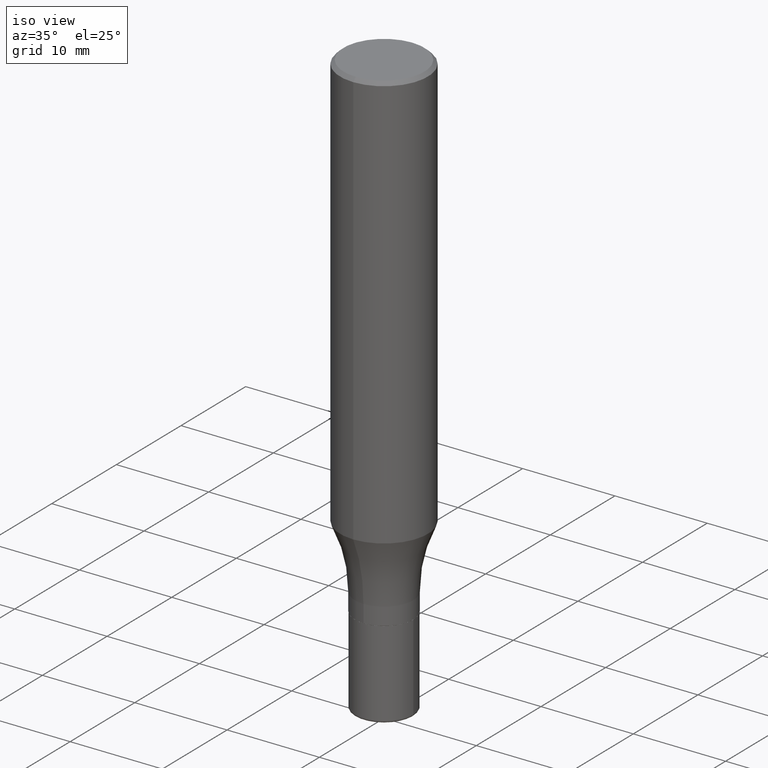
[diagram: clean part render]
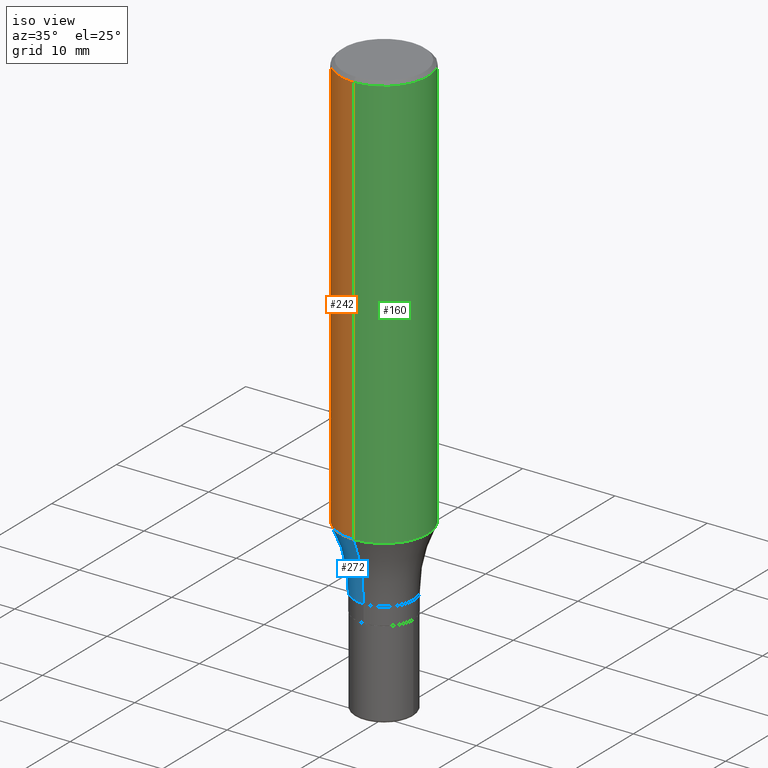
[diagram: same view with three faces highlighted in distinct colors, each labeled with its STEP entity id]
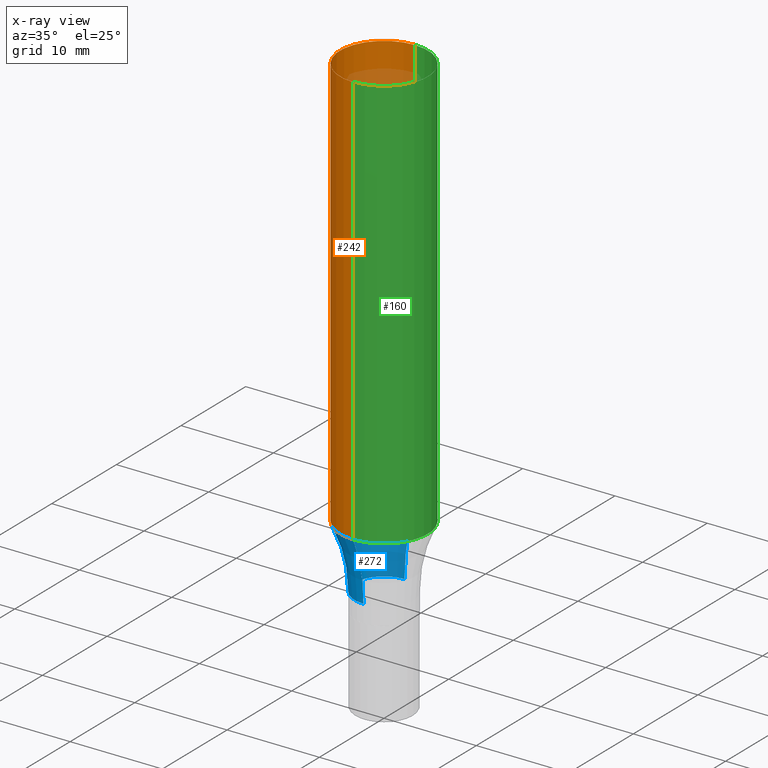
[diagram: x-ray of the same camera — body ghosted, the three highlighted faces saturated]
A machine part, iso view with three faces highlighted in distinct colors.
The next image is the same camera in x-ray (body ghosted, the three faces saturated) — at least one of them is partly hidden behind the body in this view.
Their STEP definitions:

[orange] entity #242 — the highlighted cylindrical surface (partial cylindrical patch) has radius 4.7625 mm, axis along (-0, 0, 1).
#5 = DIRECTION ( 'NONE',  ( -6.982962677686266711E-15, -1.000000000000000000, 3.490836523568371261E-15 ) ) ;
#21 = VERTEX_POINT ( 'NONE', #30 ) ;
#23 = VERTEX_POINT ( 'NONE', #432 ) ;
#28 = ORIENTED_EDGE ( 'NONE', *, *, #367, .F. ) ;
#30 = CARTESIAN_POINT ( 'NONE',  ( 1.332267629550230841E-15, 0.1874999999999937550, -1.777568816028709087 ) ) ;
#46 = DIRECTION ( 'NONE',  ( -2.445919078284912062E-29, 3.490836523568370866E-15, 1.000000000000000000 ) ) ;
#48 = VECTOR ( 'NONE', #201, 39.37007874015748143 ) ;
#81 = EDGE_CURVE ( 'NONE', #21, #102, #506, .T. ) ;
#102 = VERTEX_POINT ( 'NONE', #155 ) ;
#104 = LINE ( 'NONE', #132, #508 ) ;
#107 = AXIS2_PLACEMENT_3D ( 'NONE', #204, #46, #361 ) ;
#124 = CARTESIAN_POINT ( 'NONE',  ( 0.000000000000000000, 0.000000000000000000, 0.000000000000000000 ) ) ;
#132 = CARTESIAN_POINT ( 'NONE',  ( -1.309305502066174811E-15, -0.1874999999999999722, 6.545318481690694881E-16 ) ) ;
#155 = CARTESIAN_POINT ( 'NONE',  ( -1.309305502066131029E-15, -0.1875000000000061340, -1.777568816028707532 ) ) ;
#193 = DIRECTION ( 'NONE',  ( -2.445919078284912062E-29, 3.490836523568370866E-15, 1.000000000000000000 ) ) ;
#197 = FACE_OUTER_BOUND ( 'NONE', #208, .T. ) ;
#199 = CARTESIAN_POINT ( 'NONE',  ( 1.332267629550187454E-15, 0.1874999999999999722, -6.545318481690694881E-16 ) ) ;
#201 = DIRECTION ( 'NONE',  ( -2.445919078284912342E-29, 3.490836523568370866E-15, 1.000000000000000000 ) ) ;
#204 = CARTESIAN_POINT ( 'NONE',  ( 3.668878617427351400E-31, -5.236254785352532066E-17, -0.01499999999999993179 ) ) ;
#208 = EDGE_LOOP ( 'NONE', ( #217, #472, #306, #28 ) ) ;
#217 = ORIENTED_EDGE ( 'NONE', *, *, #313, .F. ) ;
#242 = ADVANCED_FACE ( 'NONE', ( #197 ), #357, .T. ) ;
#245 = LINE ( 'NONE', #199, #48 ) ;
#246 = DIRECTION ( 'NONE',  ( -2.445919078284912062E-29, 3.490836523568370866E-15, 1.000000000000000000 ) ) ;
#249 = CIRCLE ( 'NONE', #107, 0.1875000000000000278 ) ;
#282 = AXIS2_PLACEMENT_3D ( 'NONE', #392, #246, #480 ) ;
#306 = ORIENTED_EDGE ( 'NONE', *, *, #466, .T. ) ;
#313 = EDGE_CURVE ( 'NONE', #21, #507, #245, .T. ) ;
#357 = CYLINDRICAL_SURFACE ( 'NONE', #487, 0.1874999999999999722 ) ;
#361 = DIRECTION ( 'NONE',  ( -6.982962677686265922E-15, -1.000000000000000000, 3.494488891895536035E-15 ) ) ;
#367 = EDGE_CURVE ( 'NONE', #507, #23, #249, .T. ) ;
#392 = CARTESIAN_POINT ( 'NONE',  ( 4.347789480088940761E-29, -6.205202146149201072E-15, -1.777568816028708421 ) ) ;
#419 = CARTESIAN_POINT ( 'NONE',  ( 1.309305502066175600E-15, 0.1874999999999999445, -0.01500000000000058752 ) ) ;
#432 = CARTESIAN_POINT ( 'NONE',  ( -1.286343374582161576E-15, -0.1875000000000000833, -0.01499999999999927607 ) ) ;
#466 = EDGE_CURVE ( 'NONE', #102, #23, #104, .T. ) ;
#472 = ORIENTED_EDGE ( 'NONE', *, *, #81, .T. ) ;
#480 = DIRECTION ( 'NONE',  ( -6.982962677686266711E-15, -1.000000000000000000, 2.913971193241881161E-15 ) ) ;
#487 = AXIS2_PLACEMENT_3D ( 'NONE', #124, #193, #5 ) ;
#492 = DIRECTION ( 'NONE',  ( -2.445919078284912342E-29, 3.490836523568370866E-15, 1.000000000000000000 ) ) ;
#506 = CIRCLE ( 'NONE', #282, 0.1874999999999999722 ) ;
#507 = VERTEX_POINT ( 'NONE', #419 ) ;
#508 = VECTOR ( 'NONE', #492, 39.37007874015748143 ) ;

[blue] entity #272 — the highlighted toroidal blend (fillet) surface has major radius 19.05 mm and minor (blend) radius 15.875 mm.
#1 = EDGE_CURVE ( 'NONE', #334, #469, #314, .T. ) ;
#2 = CARTESIAN_POINT ( 'NONE',  ( 5.329070518200801092E-15, 0.7499999999999930056, -2.050000000000002931 ) ) ;
#21 = VERTEX_POINT ( 'NONE', #30 ) ;
#29 = AXIS2_PLACEMENT_3D ( 'NONE', #165, #248, #405 ) ;
#30 = CARTESIAN_POINT ( 'NONE',  ( 1.332267629550230841E-15, 0.1874999999999937550, -1.777568816028709087 ) ) ;
#64 = AXIS2_PLACEMENT_3D ( 'NONE', #467, #74, #183 ) ;
#74 = DIRECTION ( 'NONE',  ( -2.445919078284912062E-29, 3.490836523568370866E-15, 1.000000000000000000 ) ) ;
#75 = CARTESIAN_POINT ( 'NONE',  ( 1.110223024625203083E-15, 0.1249999999999928807, -2.050000000000000711 ) ) ;
#81 = EDGE_CURVE ( 'NONE', #21, #102, #506, .T. ) ;
#83 = CIRCLE ( 'NONE', #470, 0.6249999999999998890 ) ;
#102 = VERTEX_POINT ( 'NONE', #155 ) ;
#106 = ORIENTED_EDGE ( 'NONE', *, *, #175, .F. ) ;
#110 = ORIENTED_EDGE ( 'NONE', *, *, #1, .T. ) ;
#136 = CARTESIAN_POINT ( 'NONE',  ( -8.728703347107333448E-16, -0.1250000000000071887, -2.049999999999999822 ) ) ;
#150 = EDGE_LOOP ( 'NONE', ( #232, #181, #110, #106 ) ) ;
#155 = CARTESIAN_POINT ( 'NONE',  ( -1.309305502066131029E-15, -0.1875000000000061340, -1.777568816028707532 ) ) ;
#156 = FACE_OUTER_BOUND ( 'NONE', #150, .T. ) ;
#158 = DIRECTION ( 'NONE',  ( -6.982962677686265922E-15, -1.000000000000000000, 3.490836523568370866E-15 ) ) ;
#162 = CARTESIAN_POINT ( 'NONE',  ( 5.013211052679530360E-29, -7.157536744628448622E-15, -2.050000000000000266 ) ) ;
#165 = CARTESIAN_POINT ( 'NONE',  ( -5.237222008264649546E-15, -0.7500000000000072164, -2.049999999999997602 ) ) ;
#175 = EDGE_CURVE ( 'NONE', #102, #469, #225, .T. ) ;
#181 = ORIENTED_EDGE ( 'NONE', *, *, #235, .T. ) ;
#183 = DIRECTION ( 'NONE',  ( -6.982962677686265922E-15, -1.000000000000000000, 4.370956789862820361E-15 ) ) ;
#186 = TOROIDAL_SURFACE ( 'NONE', #454, 0.7500000000000001110, 0.6250000000000000000 ) ;
#225 = CIRCLE ( 'NONE', #29, 0.6249999999999998890 ) ;
#232 = ORIENTED_EDGE ( 'NONE', *, *, #81, .F. ) ;
#235 = EDGE_CURVE ( 'NONE', #21, #334, #83, .T. ) ;
#246 = DIRECTION ( 'NONE',  ( -2.445919078284912062E-29, 3.490836523568370866E-15, 1.000000000000000000 ) ) ;
#248 = DIRECTION ( 'NONE',  ( -1.000000000000000000, 6.982962677686265922E-15, -4.883557194083112340E-29 ) ) ;
#272 = ADVANCED_FACE ( 'NONE', ( #156 ), #186, .F. ) ;
#280 = DIRECTION ( 'NONE',  ( 7.105427357601003436E-15, 1.000000000000000000, 0.000000000000000000 ) ) ;
#282 = AXIS2_PLACEMENT_3D ( 'NONE', #392, #246, #480 ) ;
#284 = DIRECTION ( 'NONE',  ( -2.445919078284912062E-29, 3.490836523568370866E-15, 1.000000000000000000 ) ) ;
#314 = CIRCLE ( 'NONE', #64, 0.1250000000000000278 ) ;
#334 = VERTEX_POINT ( 'NONE', #75 ) ;
#392 = CARTESIAN_POINT ( 'NONE',  ( 4.347789480088940761E-29, -6.205202146149201072E-15, -1.777568816028708421 ) ) ;
#405 = DIRECTION ( 'NONE',  ( -6.982962677686265133E-15, -1.000000000000000000, 0.000000000000000000 ) ) ;
#454 = AXIS2_PLACEMENT_3D ( 'NONE', #162, #284, #158 ) ;
#467 = CARTESIAN_POINT ( 'NONE',  ( 5.014134110484069838E-29, -7.156214873315160631E-15, -2.050000000000000266 ) ) ;
#469 = VERTEX_POINT ( 'NONE', #136 ) ;
#470 = AXIS2_PLACEMENT_3D ( 'NONE', #2, #479, #280 ) ;
#479 = DIRECTION ( 'NONE',  ( 1.000000000000000000, -7.105427357601001070E-15, 4.926307611832459186E-29 ) ) ;
#480 = DIRECTION ( 'NONE',  ( -6.982962677686266711E-15, -1.000000000000000000, 2.913971193241881161E-15 ) ) ;
#506 = CIRCLE ( 'NONE', #282, 0.1874999999999999722 ) ;

[green] entity #160 — the highlighted cylindrical surface (partial cylindrical patch) has radius 4.7625 mm, axis along (-0, 0, 1).
#8 = DIRECTION ( 'NONE',  ( -6.982962677686266711E-15, -1.000000000000000000, 3.490836523568371261E-15 ) ) ;
#21 = VERTEX_POINT ( 'NONE', #30 ) ;
#23 = VERTEX_POINT ( 'NONE', #432 ) ;
#30 = CARTESIAN_POINT ( 'NONE',  ( 1.332267629550230841E-15, 0.1874999999999937550, -1.777568816028709087 ) ) ;
#32 = EDGE_CURVE ( 'NONE', #23, #507, #379, .T. ) ;
#42 = FACE_OUTER_BOUND ( 'NONE', #493, .T. ) ;
#47 = DIRECTION ( 'NONE',  ( -2.445919078284912062E-29, 3.490836523568370866E-15, 1.000000000000000000 ) ) ;
#48 = VECTOR ( 'NONE', #201, 39.37007874015748143 ) ;
#67 = DIRECTION ( 'NONE',  ( -6.982962677686265922E-15, -1.000000000000000000, 3.494488891895536035E-15 ) ) ;
#89 = EDGE_CURVE ( 'NONE', #102, #21, #359, .T. ) ;
#102 = VERTEX_POINT ( 'NONE', #155 ) ;
#104 = LINE ( 'NONE', #132, #508 ) ;
#105 = ORIENTED_EDGE ( 'NONE', *, *, #466, .F. ) ;
#122 = AXIS2_PLACEMENT_3D ( 'NONE', #518, #47, #329 ) ;
#132 = CARTESIAN_POINT ( 'NONE',  ( -1.309305502066174811E-15, -0.1874999999999999722, 6.545318481690694881E-16 ) ) ;
#142 = ORIENTED_EDGE ( 'NONE', *, *, #89, .T. ) ;
#155 = CARTESIAN_POINT ( 'NONE',  ( -1.309305502066131029E-15, -0.1875000000000061340, -1.777568816028707532 ) ) ;
#160 = ADVANCED_FACE ( 'NONE', ( #42 ), #398, .T. ) ;
#191 = AXIS2_PLACEMENT_3D ( 'NONE', #312, #275, #67 ) ;
#194 = CARTESIAN_POINT ( 'NONE',  ( 0.000000000000000000, 0.000000000000000000, 0.000000000000000000 ) ) ;
#199 = CARTESIAN_POINT ( 'NONE',  ( 1.332267629550187454E-15, 0.1874999999999999722, -6.545318481690694881E-16 ) ) ;
#200 = DIRECTION ( 'NONE',  ( -2.445919078284912062E-29, 3.490836523568370866E-15, 1.000000000000000000 ) ) ;
#201 = DIRECTION ( 'NONE',  ( -2.445919078284912342E-29, 3.490836523568370866E-15, 1.000000000000000000 ) ) ;
#245 = LINE ( 'NONE', #199, #48 ) ;
#275 = DIRECTION ( 'NONE',  ( -2.445919078284912062E-29, 3.490836523568370866E-15, 1.000000000000000000 ) ) ;
#303 = ORIENTED_EDGE ( 'NONE', *, *, #313, .T. ) ;
#312 = CARTESIAN_POINT ( 'NONE',  ( 3.668878617427351400E-31, -5.236254785352532066E-17, -0.01499999999999993179 ) ) ;
#313 = EDGE_CURVE ( 'NONE', #21, #507, #245, .T. ) ;
#329 = DIRECTION ( 'NONE',  ( -6.982962677686266711E-15, -1.000000000000000000, 2.913971193241881161E-15 ) ) ;
#359 = CIRCLE ( 'NONE', #122, 0.1874999999999999722 ) ;
#379 = CIRCLE ( 'NONE', #191, 0.1875000000000000278 ) ;
#398 = CYLINDRICAL_SURFACE ( 'NONE', #477, 0.1874999999999999722 ) ;
#419 = CARTESIAN_POINT ( 'NONE',  ( 1.309305502066175600E-15, 0.1874999999999999445, -0.01500000000000058752 ) ) ;
#428 = ORIENTED_EDGE ( 'NONE', *, *, #32, .F. ) ;
#432 = CARTESIAN_POINT ( 'NONE',  ( -1.286343374582161576E-15, -0.1875000000000000833, -0.01499999999999927607 ) ) ;
#466 = EDGE_CURVE ( 'NONE', #102, #23, #104, .T. ) ;
#477 = AXIS2_PLACEMENT_3D ( 'NONE', #194, #200, #8 ) ;
#492 = DIRECTION ( 'NONE',  ( -2.445919078284912342E-29, 3.490836523568370866E-15, 1.000000000000000000 ) ) ;
#493 = EDGE_LOOP ( 'NONE', ( #142, #303, #428, #105 ) ) ;
#507 = VERTEX_POINT ( 'NONE', #419 ) ;
#508 = VECTOR ( 'NONE', #492, 39.37007874015748143 ) ;
#518 = CARTESIAN_POINT ( 'NONE',  ( 4.347789480088940761E-29, -6.205202146149201072E-15, -1.777568816028708421 ) ) ;